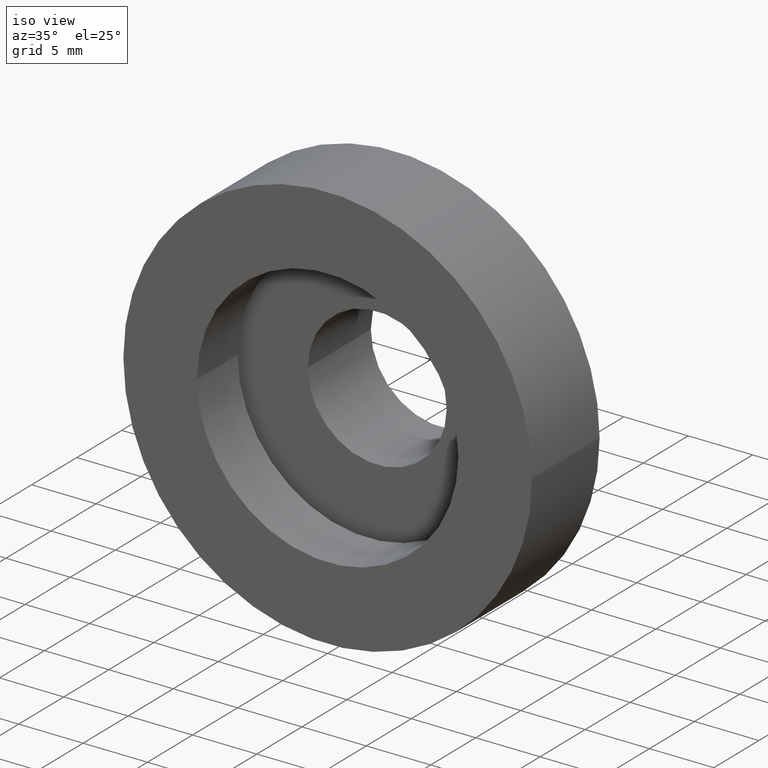
[diagram: clean part render]
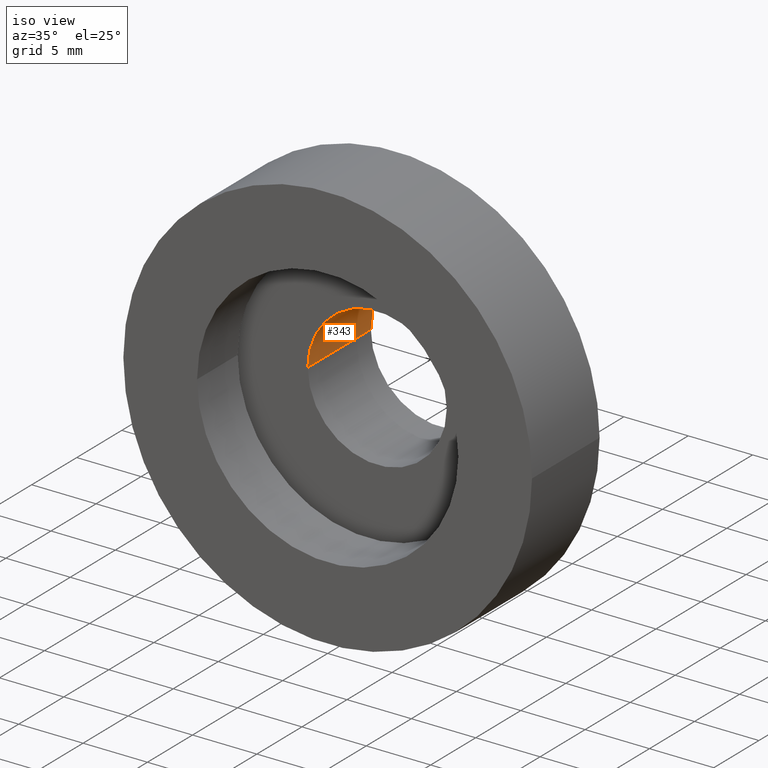
[diagram: same view with one face highlighted and labeled with its STEP entity id]
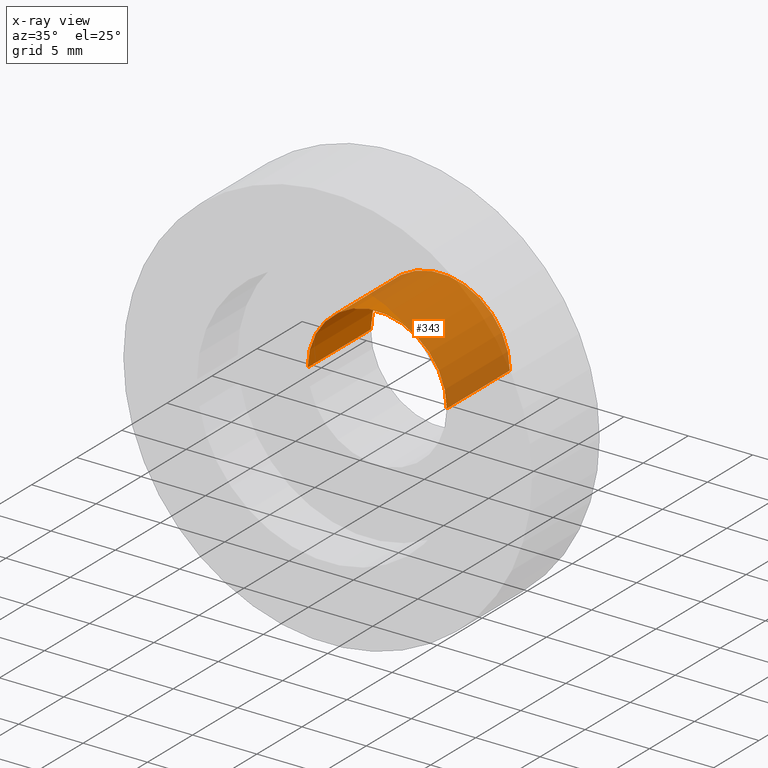
[diagram: x-ray of the same camera — body ghosted, the highlighted face saturated]
A machine part, iso view. The second image highlights one B-rep face of the part: STEP entity #343.
The next image is the same camera in x-ray: the body ghosted, the highlighted face saturated — about 80% of this face is hidden behind the body in this view.
In plain terms, the highlighted cylindrical surface (partial cylindrical patch) has radius 5.4 mm, axis along (-0, 1, -0).
Its self-contained STEP definition (entity closure, byte-faithful):
#5 = EDGE_LOOP ( 'NONE', ( #48, #357, #81, #155 ) ) ;
#17 = DIRECTION ( 'NONE',  ( -1.000000000000000000, 0.0000000000000000000, 0.0000000000000000000 ) ) ;
#18 = VECTOR ( 'NONE', #553, 1000.000000000000000 ) ;
#30 = DIRECTION ( 'NONE',  ( -1.224646799147351000E-016, 1.000000000000000000, -0.0000000000000000000 ) ) ;
#48 = ORIENTED_EDGE ( 'NONE', *, *, #287, .F. ) ;
#81 = ORIENTED_EDGE ( 'NONE', *, *, #419, .T. ) ;
#116 = CARTESIAN_POINT ( 'NONE',  ( 5.400000000000000400, 16.88601823708207700, 6.613092715395707500E-016 ) ) ;
#117 = CIRCLE ( 'NONE', #331, 5.400000000000000400 ) ;
#154 = CIRCLE ( 'NONE', #415, 5.400000000000000400 ) ;
#155 = ORIENTED_EDGE ( 'NONE', *, *, #460, .T. ) ;
#166 = CARTESIAN_POINT ( 'NONE',  ( 0.0000000000000000000, 16.88601823708207700, 0.0000000000000000000 ) ) ;
#168 = CARTESIAN_POINT ( 'NONE',  ( -5.400000000000000400, 16.88601823708207700, 0.0000000000000000000 ) ) ;
#169 = LINE ( 'NONE', #168, #179 ) ;
#173 = CARTESIAN_POINT ( 'NONE',  ( 5.371323195044475300E-016, 12.49999999999999600, 0.0000000000000000000 ) ) ;
#179 = VECTOR ( 'NONE', #366, 1000.000000000000000 ) ;
#206 = CARTESIAN_POINT ( 'NONE',  ( 5.400000000000001200, 12.49999999999999600, 6.613092715395707500E-016 ) ) ;
#209 = DIRECTION ( 'NONE',  ( -1.224646799147351000E-016, 1.000000000000000000, -0.0000000000000000000 ) ) ;
#222 = VERTEX_POINT ( 'NONE', #396 ) ;
#262 = DIRECTION ( 'NONE',  ( -1.000000000000000000, 0.0000000000000000000, 0.0000000000000000000 ) ) ;
#264 = CYLINDRICAL_SURFACE ( 'NONE', #474, 5.400000000000000400 ) ;
#287 = EDGE_CURVE ( 'NONE', #583, #494, #452, .T. ) ;
#327 = FACE_OUTER_BOUND ( 'NONE', #5, .T. ) ;
#331 = AXIS2_PLACEMENT_3D ( 'NONE', #173, #30, #262 ) ;
#343 = ADVANCED_FACE ( 'NONE', ( #327 ), #264, .F. ) ;
#357 = ORIENTED_EDGE ( 'NONE', *, *, #383, .F. ) ;
#366 = DIRECTION ( 'NONE',  ( -1.224646799147351000E-016, 1.000000000000000000, -0.0000000000000000000 ) ) ;
#383 = EDGE_CURVE ( 'NONE', #501, #583, #154, .T. ) ;
#396 = CARTESIAN_POINT ( 'NONE',  ( -5.399999999999999500, 12.49999999999999600, 0.0000000000000000000 ) ) ;
#415 = AXIS2_PLACEMENT_3D ( 'NONE', #601, #209, #564 ) ;
#419 = EDGE_CURVE ( 'NONE', #501, #222, #169, .T. ) ;
#442 = CARTESIAN_POINT ( 'NONE',  ( 5.400000000000002100, 5.499999999999999100, 6.613092715395707500E-016 ) ) ;
#450 = CARTESIAN_POINT ( 'NONE',  ( -5.399999999999998600, 5.499999999999997300, 0.0000000000000000000 ) ) ;
#452 = LINE ( 'NONE', #116, #18 ) ;
#460 = EDGE_CURVE ( 'NONE', #222, #494, #117, .T. ) ;
#474 = AXIS2_PLACEMENT_3D ( 'NONE', #166, #503, #17 ) ;
#494 = VERTEX_POINT ( 'NONE', #206 ) ;
#501 = VERTEX_POINT ( 'NONE', #450 ) ;
#503 = DIRECTION ( 'NONE',  ( -1.224646799147351000E-016, 1.000000000000000000, -0.0000000000000000000 ) ) ;
#553 = DIRECTION ( 'NONE',  ( -1.224646799147351000E-016, 1.000000000000000000, -0.0000000000000000000 ) ) ;
#564 = DIRECTION ( 'NONE',  ( -1.000000000000000000, -1.606225440719265600E-016, 0.0000000000000000000 ) ) ;
#583 = VERTEX_POINT ( 'NONE', #442 ) ;
#601 = CARTESIAN_POINT ( 'NONE',  ( 1.394385078907593000E-015, 5.499999999999998200, 0.0000000000000000000 ) ) ;